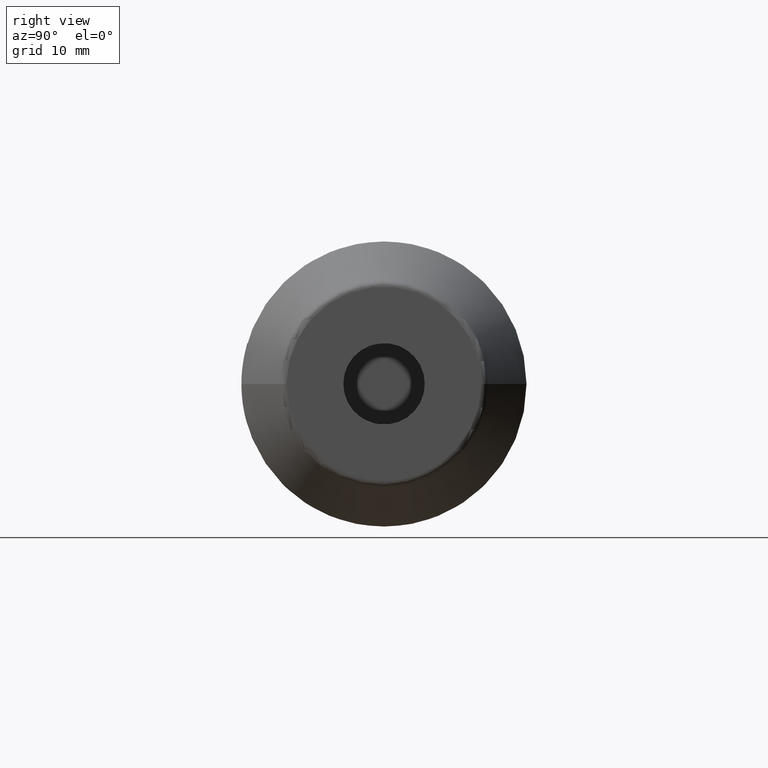
[diagram: clean part render]
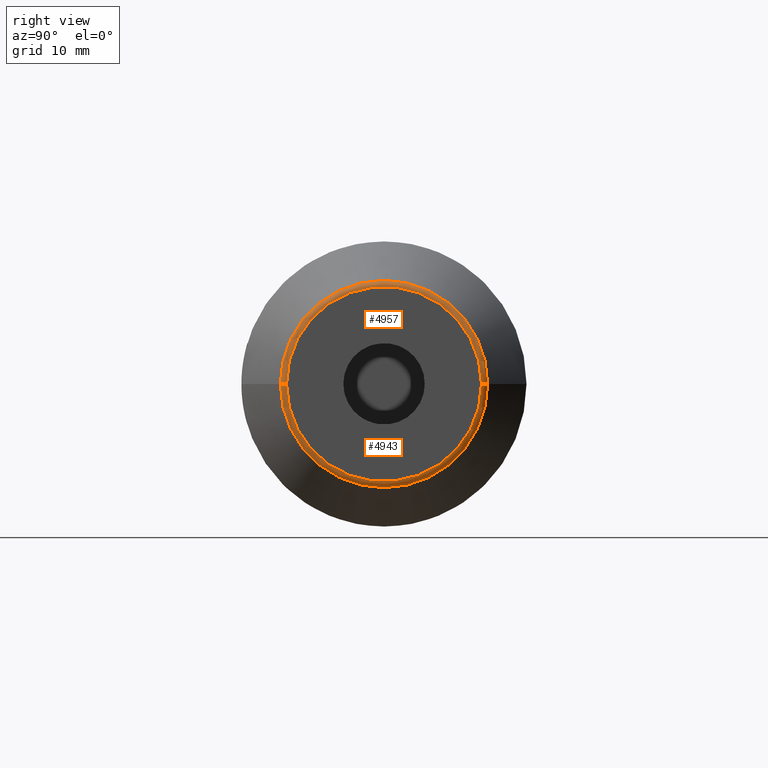
[diagram: same view with one multi-face feature highlighted, each face labeled with its STEP entity id]
A machine part, right view. The highlighted faces form ONE feature: a constant-radius fillet chain: 2 tangent blend faces with common blend radius 1 mm. The faces share edges in the B-rep.
Their STEP definitions:
[1] entity #4957 (Torus):
#1472=CARTESIAN_POINT('',(6.9E1,1.436292973919E1,9.193056038637E-12));
#1473=DIRECTION('',(0.E0,6.400539820373E-13,-1.E0));
#1474=DIRECTION('',(4.226182617409E-1,9.063077870365E-1,5.800859080441E-13));
#1475=AXIS2_PLACEMENT_3D('',#1472,#1473,#1474);
#1477=CARTESIAN_POINT('',(6.9E1,-1.436292973919E1,-9.193319716605E-12));
#1478=DIRECTION('',(0.E0,-6.400721966338E-13,1.E0));
#1479=DIRECTION('',(4.226182617409E-1,-9.063077870365E-1,-5.801024160748E-13));
#1480=AXIS2_PLACEMENT_3D('',#1477,#1478,#1479);
#1482=CARTESIAN_POINT('',(6.942261826174E1,0.E0,0.E0));
#1483=DIRECTION('',(-1.E0,0.E0,0.E0));
#1484=DIRECTION('',(0.E0,-1.E0,0.E0));
#1485=AXIS2_PLACEMENT_3D('',#1482,#1483,#1484);
#1507=CARTESIAN_POINT('',(7.E1,0.E0,0.E0));
#1508=DIRECTION('',(-1.E0,0.E0,0.E0));
#1509=DIRECTION('',(0.E0,-1.E0,0.E0));
#1510=AXIS2_PLACEMENT_3D('',#1507,#1508,#1509);
#3387=CARTESIAN_POINT('',(6.942261826174E1,1.526923752623E1,0.E0));
#3388=CARTESIAN_POINT('',(6.942261826174E1,-1.526923752623E1,0.E0));
#3389=VERTEX_POINT('',#3387);
#3390=VERTEX_POINT('',#3388);
#3391=CARTESIAN_POINT('',(7.E1,1.436292973919E1,-1.352841359022E-14));
#3392=CARTESIAN_POINT('',(7.E1,-1.436292973919E1,0.E0));
#3393=VERTEX_POINT('',#3391);
#3394=VERTEX_POINT('',#3392);
#4944=CARTESIAN_POINT('',(6.9E1,0.E0,0.E0));
#4945=DIRECTION('',(1.E0,0.E0,0.E0));
#4946=DIRECTION('',(0.E0,-9.999915662874E-1,-4.106988454241E-3));
#4947=AXIS2_PLACEMENT_3D('',#4944,#4945,#4946);
#4948=TOROIDAL_SURFACE('',#4947,1.436292973919E1,1.E0);
#4950=ORIENTED_EDGE('',*,*,#4949,.T.);
#4951=ORIENTED_EDGE('',*,*,#4939,.T.);
#4953=ORIENTED_EDGE('',*,*,#4952,.F.);
#4954=ORIENTED_EDGE('',*,*,#4935,.F.);
#4955=EDGE_LOOP('',(#4950,#4951,#4953,#4954));
#4956=FACE_OUTER_BOUND('',#4955,.F.);
#4957=ADVANCED_FACE('',(#4956),#4948,.T.);
#1476=CIRCLE('',#1475,1.E0);
#1481=CIRCLE('',#1480,1.E0);
#1486=CIRCLE('',#1485,1.526923752623E1);
#1511=CIRCLE('',#1510,1.436292973919E1);
#4935=EDGE_CURVE('',#3390,#3394,#1481,.T.);
#4939=EDGE_CURVE('',#3389,#3393,#1476,.T.);
#4949=EDGE_CURVE('',#3390,#3389,#1486,.T.);
#4952=EDGE_CURVE('',#3394,#3393,#1511,.T.);
[2] entity #4943 (Torus):
#1454=CARTESIAN_POINT('',(6.942261826174E1,0.E0,0.E0));
#1455=DIRECTION('',(-1.E0,0.E0,0.E0));
#1456=DIRECTION('',(0.E0,1.E0,0.E0));
#1457=AXIS2_PLACEMENT_3D('',#1454,#1455,#1456);
#1472=CARTESIAN_POINT('',(6.9E1,1.436292973919E1,9.193056038637E-12));
#1473=DIRECTION('',(0.E0,6.400539820373E-13,-1.E0));
#1474=DIRECTION('',(4.226182617409E-1,9.063077870365E-1,5.800859080441E-13));
#1475=AXIS2_PLACEMENT_3D('',#1472,#1473,#1474);
#1477=CARTESIAN_POINT('',(6.9E1,-1.436292973919E1,-9.193319716605E-12));
#1478=DIRECTION('',(0.E0,-6.400721966338E-13,1.E0));
#1479=DIRECTION('',(4.226182617409E-1,-9.063077870365E-1,-5.801024160748E-13));
#1480=AXIS2_PLACEMENT_3D('',#1477,#1478,#1479);
#1502=CARTESIAN_POINT('',(7.E1,0.E0,0.E0));
#1503=DIRECTION('',(-1.E0,0.E0,0.E0));
#1504=DIRECTION('',(0.E0,1.E0,0.E0));
#1505=AXIS2_PLACEMENT_3D('',#1502,#1503,#1504);
#3387=CARTESIAN_POINT('',(6.942261826174E1,1.526923752623E1,0.E0));
#3388=CARTESIAN_POINT('',(6.942261826174E1,-1.526923752623E1,0.E0));
#3389=VERTEX_POINT('',#3387);
#3390=VERTEX_POINT('',#3388);
#3391=CARTESIAN_POINT('',(7.E1,1.436292973919E1,-1.352841359022E-14));
#3392=CARTESIAN_POINT('',(7.E1,-1.436292973919E1,0.E0));
#3393=VERTEX_POINT('',#3391);
#3394=VERTEX_POINT('',#3392);
#4929=CARTESIAN_POINT('',(6.9E1,0.E0,0.E0));
#4930=DIRECTION('',(1.E0,0.E0,0.E0));
#4931=DIRECTION('',(0.E0,9.999915662874E-1,4.106988454241E-3));
#4932=AXIS2_PLACEMENT_3D('',#4929,#4930,#4931);
#4933=TOROIDAL_SURFACE('',#4932,1.436292973919E1,1.E0);
#4934=ORIENTED_EDGE('',*,*,#4919,.T.);
#4936=ORIENTED_EDGE('',*,*,#4935,.T.);
#4938=ORIENTED_EDGE('',*,*,#4937,.F.);
#4940=ORIENTED_EDGE('',*,*,#4939,.F.);
#4941=EDGE_LOOP('',(#4934,#4936,#4938,#4940));
#4942=FACE_OUTER_BOUND('',#4941,.F.);
#4943=ADVANCED_FACE('',(#4942),#4933,.T.);
#1458=CIRCLE('',#1457,1.526923752623E1);
#1476=CIRCLE('',#1475,1.E0);
#1481=CIRCLE('',#1480,1.E0);
#1506=CIRCLE('',#1505,1.436292973919E1);
#4919=EDGE_CURVE('',#3389,#3390,#1458,.T.);
#4935=EDGE_CURVE('',#3390,#3394,#1481,.T.);
#4937=EDGE_CURVE('',#3393,#3394,#1506,.T.);
#4939=EDGE_CURVE('',#3389,#3393,#1476,.T.);